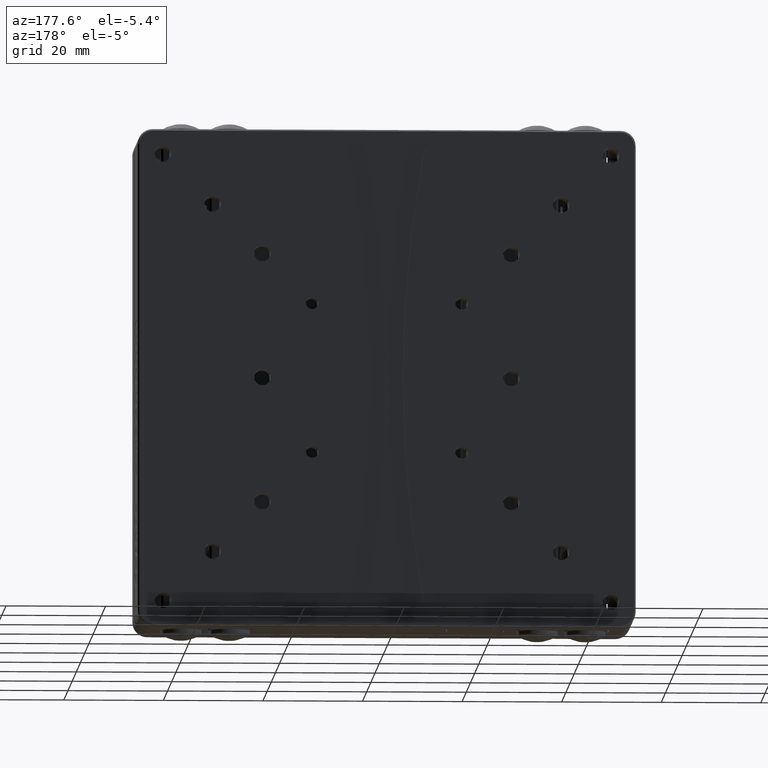
[diagram: clean part render]
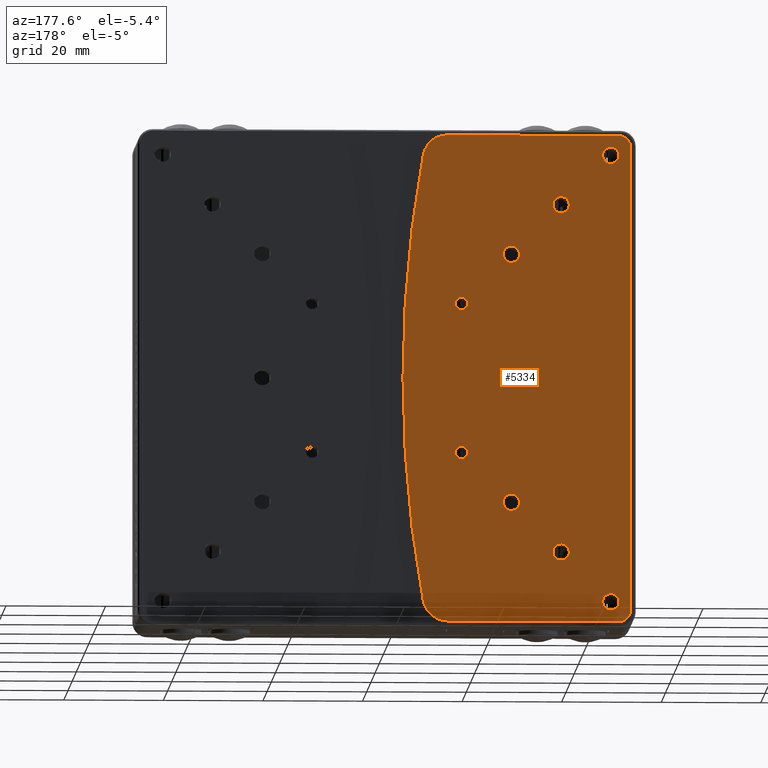
[diagram: same view with one face highlighted and labeled with its STEP entity id]
A machine part, auxiliary view. The second image highlights one B-rep face of the part: STEP entity #5334.
In plain terms, the highlighted planar face has unit normal (-0, 1, 0).
Its self-contained STEP definition (entity closure, byte-faithful):
#135 = CARTESIAN_POINT ( 'NONE',  ( -25.00000000000000000, 16.50000000000000000, 26.64999999999999900 ) ) ;
#322 = CARTESIAN_POINT ( 'NONE',  ( -12.23340306111999900, 16.50000000000000000, 49.00000000000000000 ) ) ;
#411 = CIRCLE ( 'NONE', #48054, 1.649999999999998600 ) ;
#851 = EDGE_CURVE ( 'NONE', #21226, #16068, #47699, .T. ) ;
#870 = VERTEX_POINT ( 'NONE', #13948 ) ;
#1006 = DIRECTION ( 'NONE',  ( 0.0000000000000000000, 1.000000000000000000, 0.0000000000000000000 ) ) ;
#1239 = CARTESIAN_POINT ( 'NONE',  ( -35.00000000000000000, 16.50000000000000000, -35.00000000000000000 ) ) ;
#1387 = EDGE_LOOP ( 'NONE', ( #20909, #45431 ) ) ;
#1508 = DIRECTION ( 'NONE',  ( -1.734723475976803200E-015, 0.0000000000000000000, -1.000000000000000000 ) ) ;
#1638 = EDGE_CURVE ( 'NONE', #14748, #54761, #25670, .T. ) ;
#2076 = ORIENTED_EDGE ( 'NONE', *, *, #9778, .T. ) ;
#2105 = CIRCLE ( 'NONE', #17062, 1.649999999999998600 ) ;
#2128 = DIRECTION ( 'NONE',  ( 0.0000000000000000000, -1.000000000000000000, -2.628368902995169900E-016 ) ) ;
#3119 = ORIENTED_EDGE ( 'NONE', *, *, #31594, .T. ) ;
#3191 = PLANE ( 'NONE',  #41843 ) ;
#3281 = EDGE_CURVE ( 'NONE', #12371, #25586, #3959, .T. ) ;
#3348 = CARTESIAN_POINT ( 'NONE',  ( -253.2499999999999700, 16.50000000000000000, -2.842170943039999700E-014 ) ) ;
#3902 = DIRECTION ( 'NONE',  ( 0.0000000000000000000, 0.0000000000000000000, 1.000000000000000000 ) ) ;
#3959 = CIRCLE ( 'NONE', #31106, 1.250000000000001100 ) ;
#4817 = CIRCLE ( 'NONE', #25986, 1.649999999999998600 ) ;
#4965 = DIRECTION ( 'NONE',  ( -0.0000000000000000000, -1.000000000000000000, -0.0000000000000000000 ) ) ;
#5254 = LINE ( 'NONE', #23402, #37904 ) ;
#5334 = ADVANCED_FACE ( 'NONE', ( #40435, #7762, #31759, #29114, #17758, #6437, #50406, #39092, #27794, #16413 ), #3191, .T. ) ;
#5394 = ORIENTED_EDGE ( 'NONE', *, *, #47120, .T. ) ;
#5521 = DIRECTION ( 'NONE',  ( 0.0000000000000000000, 0.0000000000000000000, 1.000000000000000000 ) ) ;
#5651 = CARTESIAN_POINT ( 'NONE',  ( -25.00000000000000000, 16.50000000000000000, -25.00000000000000000 ) ) ;
#5700 = VERTEX_POINT ( 'NONE', #44106 ) ;
#5793 = DIRECTION ( 'NONE',  ( 0.0000000000000000000, -1.000000000000000000, -2.628368902995164500E-016 ) ) ;
#6281 = ORIENTED_EDGE ( 'NONE', *, *, #7439, .T. ) ;
#6437 = FACE_BOUND ( 'NONE', #36489, .T. ) ;
#6951 = DIRECTION ( 'NONE',  ( -0.0000000000000000000, 1.000000000000000000, -0.0000000000000000000 ) ) ;
#7059 = DIRECTION ( 'NONE',  ( 0.0000000000000000000, 1.000000000000000000, 0.0000000000000000000 ) ) ;
#7285 = CARTESIAN_POINT ( 'NONE',  ( -50.96000000000000800, 16.50000000000000000, 50.96000000000000800 ) ) ;
#7359 = CARTESIAN_POINT ( 'NONE',  ( -12.23340306111999700, 16.50000000000000000, -49.00000000000000000 ) ) ;
#7439 = EDGE_CURVE ( 'NONE', #8179, #23715, #52301, .T. ) ;
#7470 = DIRECTION ( 'NONE',  ( -0.0000000000000000000, 1.000000000000000000, 0.0000000000000000000 ) ) ;
#7643 = DIRECTION ( 'NONE',  ( 0.0000000000000000000, 0.0000000000000000000, 1.000000000000000000 ) ) ;
#7762 = FACE_BOUND ( 'NONE', #42249, .T. ) ;
#7839 = AXIS2_PLACEMENT_3D ( 'NONE', #5651, #35447, #9931 ) ;
#8179 = VERTEX_POINT ( 'NONE', #30148 ) ;
#8202 = VERTEX_POINT ( 'NONE', #322 ) ;
#8490 = CIRCLE ( 'NONE', #25201, 1.649999999999998600 ) ;
#8670 = ORIENTED_EDGE ( 'NONE', *, *, #13080, .T. ) ;
#8980 = EDGE_CURVE ( 'NONE', #16068, #21226, #4817, .T. ) ;
#9404 = DIRECTION ( 'NONE',  ( -0.0000000000000000000, -1.000000000000000000, -0.0000000000000000000 ) ) ;
#9542 = CARTESIAN_POINT ( 'NONE',  ( -25.00000000000000000, 16.50000000000000000, -2.842170943039999700E-014 ) ) ;
#9695 = EDGE_CURVE ( 'NONE', #870, #36171, #2105, .T. ) ;
#9757 = AXIS2_PLACEMENT_3D ( 'NONE', #46003, #20527, #50303 ) ;
#9778 = EDGE_CURVE ( 'NONE', #16526, #5700, #52078, .T. ) ;
#9923 = CARTESIAN_POINT ( 'NONE',  ( -7.314697001140984900, 16.50000000000000400, 44.89795918367182300 ) ) ;
#9931 = DIRECTION ( 'NONE',  ( 0.0000000000000000000, 0.0000000000000000000, 1.000000000000000000 ) ) ;
#10811 = VERTEX_POINT ( 'NONE', #40580 ) ;
#10962 = AXIS2_PLACEMENT_3D ( 'NONE', #52570, #27082, #1508 ) ;
#11006 = DIRECTION ( 'NONE',  ( 0.0000000000000000000, 0.0000000000000000000, 1.000000000000000000 ) ) ;
#11128 = AXIS2_PLACEMENT_3D ( 'NONE', #32571, #7059, #36840 ) ;
#11297 = VECTOR ( 'NONE', #11006, 1000.000000000000000 ) ;
#11397 = DIRECTION ( 'NONE',  ( 0.0000000000000000000, -1.000000000000000000, -2.628368902995169900E-016 ) ) ;
#11681 = VERTEX_POINT ( 'NONE', #34679 ) ;
#12156 = DIRECTION ( 'NONE',  ( 0.0000000000000000000, -1.000000000000000000, -2.628368902995164500E-016 ) ) ;
#12371 = VERTEX_POINT ( 'NONE', #28030 ) ;
#12611 = CARTESIAN_POINT ( 'NONE',  ( -35.00000000000000000, 16.50000000000000000, -33.35000000000000100 ) ) ;
#12946 = CIRCLE ( 'NONE', #51128, 1.649999999999998600 ) ;
#13012 = ORIENTED_EDGE ( 'NONE', *, *, #3281, .F. ) ;
#13080 = EDGE_CURVE ( 'NONE', #29694, #34847, #34545, .T. ) ;
#13548 = ORIENTED_EDGE ( 'NONE', *, *, #8980, .T. ) ;
#13840 = DIRECTION ( 'NONE',  ( 0.0000000000000000000, 0.0000000000000000000, 1.000000000000000000 ) ) ;
#13948 = CARTESIAN_POINT ( 'NONE',  ( -35.00000000000000000, 16.50000000000000000, 33.35000000000000100 ) ) ;
#14748 = VERTEX_POINT ( 'NONE', #53021 ) ;
#15088 = ORIENTED_EDGE ( 'NONE', *, *, #42171, .T. ) ;
#15148 = ORIENTED_EDGE ( 'NONE', *, *, #851, .T. ) ;
#15357 = EDGE_LOOP ( 'NONE', ( #6281, #22800, #26647, #44672, #54393, #3119, #53431, #20190 ) ) ;
#15664 = VERTEX_POINT ( 'NONE', #21820 ) ;
#16068 = VERTEX_POINT ( 'NONE', #12611 ) ;
#16413 = FACE_OUTER_BOUND ( 'NONE', #15357, .T. ) ;
#16526 = VERTEX_POINT ( 'NONE', #51283 ) ;
#17060 = VERTEX_POINT ( 'NONE', #9923 ) ;
#17062 = AXIS2_PLACEMENT_3D ( 'NONE', #34914, #9404, #39223 ) ;
#17112 = AXIS2_PLACEMENT_3D ( 'NONE', #9542, #39357, #13840 ) ;
#17758 = FACE_BOUND ( 'NONE', #34930, .T. ) ;
#18485 = DIRECTION ( 'NONE',  ( -0.0000000000000000000, -1.000000000000000000, -0.0000000000000000000 ) ) ;
#19425 = CARTESIAN_POINT ( 'NONE',  ( -15.00000000000000000, 16.50000000000000400, -13.74999999999999800 ) ) ;
#19526 = EDGE_CURVE ( 'NONE', #15664, #55079, #33436, .T. ) ;
#20190 = ORIENTED_EDGE ( 'NONE', *, *, #27900, .T. ) ;
#20392 = ORIENTED_EDGE ( 'NONE', *, *, #42421, .T. ) ;
#20527 = DIRECTION ( 'NONE',  ( 3.469446951953611200E-016, 1.000000000000000000, 0.0000000000000000000 ) ) ;
#20664 = EDGE_CURVE ( 'NONE', #8202, #17060, #41988, .T. ) ;
#20666 = DIRECTION ( 'NONE',  ( 0.0000000000000000000, 1.000000000000000000, 0.0000000000000000000 ) ) ;
#20857 = VERTEX_POINT ( 'NONE', #25920 ) ;
#20909 = ORIENTED_EDGE ( 'NONE', *, *, #29733, .T. ) ;
#21156 = LINE ( 'NONE', #31026, #53820 ) ;
#21226 = VERTEX_POINT ( 'NONE', #24932 ) ;
#21580 = CARTESIAN_POINT ( 'NONE',  ( -25.00000000000000000, 16.50000000000000000, 25.00000000000000000 ) ) ;
#21820 = CARTESIAN_POINT ( 'NONE',  ( -15.00000000000000000, 16.50000000000000400, 13.74999999999999800 ) ) ;
#22071 = CARTESIAN_POINT ( 'NONE',  ( -46.49999999999999300, 16.50000000000000000, 46.49999999999999300 ) ) ;
#22105 = CARTESIAN_POINT ( 'NONE',  ( -15.00000000000000000, 16.50000000000000400, 15.00000000000000000 ) ) ;
#22339 = DIRECTION ( 'NONE',  ( -0.0000000000000000000, -1.000000000000000000, -0.0000000000000000000 ) ) ;
#22456 = EDGE_CURVE ( 'NONE', #36171, #870, #36509, .T. ) ;
#22659 = EDGE_LOOP ( 'NONE', ( #43848, #43804 ) ) ;
#22715 = AXIS2_PLACEMENT_3D ( 'NONE', #46155, #20666, #50459 ) ;
#22800 = ORIENTED_EDGE ( 'NONE', *, *, #45376, .T. ) ;
#23066 = CARTESIAN_POINT ( 'NONE',  ( -25.00000000000000000, 16.50000000000000000, 1.649999999999968600 ) ) ;
#23284 = EDGE_CURVE ( 'NONE', #42722, #20857, #37093, .T. ) ;
#23402 = CARTESIAN_POINT ( 'NONE',  ( 0.0000000000000000000, 16.50000000000000000, 49.00000000000000000 ) ) ;
#23435 = DIRECTION ( 'NONE',  ( -0.0000000000000000000, -1.000000000000000000, -0.0000000000000000000 ) ) ;
#23715 = VERTEX_POINT ( 'NONE', #47894 ) ;
#23915 = CARTESIAN_POINT ( 'NONE',  ( -25.00000000000000000, 16.50000000000000000, 23.35000000000000100 ) ) ;
#24863 = AXIS2_PLACEMENT_3D ( 'NONE', #36929, #11397, #41213 ) ;
#24918 = CIRCLE ( 'NONE', #10962, 5.000000000000011500 ) ;
#24932 = CARTESIAN_POINT ( 'NONE',  ( -35.00000000000000000, 16.50000000000000000, -36.64999999999999900 ) ) ;
#25201 = AXIS2_PLACEMENT_3D ( 'NONE', #31298, #5793, #35572 ) ;
#25239 = EDGE_LOOP ( 'NONE', ( #13548, #15148 ) ) ;
#25586 = VERTEX_POINT ( 'NONE', #19425 ) ;
#25670 = CIRCLE ( 'NONE', #7839, 1.649999999999998600 ) ;
#25897 = DIRECTION ( 'NONE',  ( 0.0000000000000000000, 0.0000000000000000000, 1.000000000000000000 ) ) ;
#25920 = CARTESIAN_POINT ( 'NONE',  ( -46.49999999999999300, 16.50000000000000000, 49.00000000000000000 ) ) ;
#25986 = AXIS2_PLACEMENT_3D ( 'NONE', #1239, #31075, #5521 ) ;
#26400 = DIRECTION ( 'NONE',  ( 0.0000000000000000000, 0.0000000000000000000, -1.000000000000000000 ) ) ;
#26444 = DIRECTION ( 'NONE',  ( 0.0000000000000000000, 0.0000000000000000000, 1.000000000000000000 ) ) ;
#26574 = CARTESIAN_POINT ( 'NONE',  ( -15.00000000000000000, 16.50000000000000400, -15.00000000000000000 ) ) ;
#26647 = ORIENTED_EDGE ( 'NONE', *, *, #23284, .T. ) ;
#26657 = EDGE_CURVE ( 'NONE', #20857, #8202, #5254, .T. ) ;
#27082 = DIRECTION ( 'NONE',  ( -0.0000000000000000000, 1.000000000000000000, -0.0000000000000000000 ) ) ;
#27224 = AXIS2_PLACEMENT_3D ( 'NONE', #54954, #29428, #3902 ) ;
#27685 = CARTESIAN_POINT ( 'NONE',  ( -45.00000000000000000, 16.50000000000000000, 45.00000000000000000 ) ) ;
#27763 = AXIS2_PLACEMENT_3D ( 'NONE', #22071, #51875, #26400 ) ;
#27794 = FACE_BOUND ( 'NONE', #52996, .T. ) ;
#27882 = CIRCLE ( 'NONE', #42683, 1.649999999999998600 ) ;
#27900 = EDGE_CURVE ( 'NONE', #53911, #8179, #21156, .T. ) ;
#28004 = CARTESIAN_POINT ( 'NONE',  ( -49.00000000000000000, 16.50000000000000000, 0.0000000000000000000 ) ) ;
#28030 = CARTESIAN_POINT ( 'NONE',  ( -15.00000000000000000, 16.50000000000000400, -16.25000000000000000 ) ) ;
#28071 = AXIS2_PLACEMENT_3D ( 'NONE', #43976, #18485, #48247 ) ;
#28415 = EDGE_LOOP ( 'NONE', ( #2076, #43965 ) ) ;
#29114 = FACE_BOUND ( 'NONE', #28415, .T. ) ;
#29428 = DIRECTION ( 'NONE',  ( -0.0000000000000000000, -1.000000000000000000, -0.0000000000000000000 ) ) ;
#29586 = AXIS2_PLACEMENT_3D ( 'NONE', #37692, #12156, #41967 ) ;
#29694 = VERTEX_POINT ( 'NONE', #23066 ) ;
#29733 = EDGE_CURVE ( 'NONE', #54761, #14748, #12946, .T. ) ;
#30148 = CARTESIAN_POINT ( 'NONE',  ( -46.49999999999998600, 16.50000000000000000, -49.00000000000000000 ) ) ;
#30517 = CARTESIAN_POINT ( 'NONE',  ( -25.00000000000000000, 16.50000000000000000, 25.00000000000000000 ) ) ;
#30690 = CARTESIAN_POINT ( 'NONE',  ( -25.00000000000000000, 16.50000000000000000, -23.35000000000000100 ) ) ;
#30832 = DIRECTION ( 'NONE',  ( 0.0000000000000000000, 0.0000000000000000000, 1.000000000000000000 ) ) ;
#31026 = CARTESIAN_POINT ( 'NONE',  ( 0.0000000000000000000, 16.50000000000000000, -49.00000000000000000 ) ) ;
#31075 = DIRECTION ( 'NONE',  ( -0.0000000000000000000, -1.000000000000000000, -0.0000000000000000000 ) ) ;
#31106 = AXIS2_PLACEMENT_3D ( 'NONE', #26574, #1006, #30832 ) ;
#31298 = CARTESIAN_POINT ( 'NONE',  ( -45.00000000000000000, 16.50000000000000000, -45.00000000000000000 ) ) ;
#31349 = EDGE_CURVE ( 'NONE', #11681, #53911, #24918, .T. ) ;
#31594 = EDGE_CURVE ( 'NONE', #17060, #11681, #35525, .T. ) ;
#31759 = FACE_BOUND ( 'NONE', #1387, .T. ) ;
#31921 = DIRECTION ( 'NONE',  ( 0.0000000000000000000, 0.0000000000000000000, 1.000000000000000000 ) ) ;
#32469 = CARTESIAN_POINT ( 'NONE',  ( -46.49999999999999300, 16.50000000000000000, -46.49999999999999300 ) ) ;
#32571 = CARTESIAN_POINT ( 'NONE',  ( -15.00000000000000000, 16.50000000000000400, 15.00000000000000000 ) ) ;
#33100 = AXIS2_PLACEMENT_3D ( 'NONE', #22105, #51908, #26444 ) ;
#33162 = DIRECTION ( 'NONE',  ( 0.0000000000000000000, 1.000000000000000000, 0.0000000000000000000 ) ) ;
#33436 = CIRCLE ( 'NONE', #11128, 1.250000000000001100 ) ;
#34545 = CIRCLE ( 'NONE', #27224, 1.649999999999997000 ) ;
#34679 = CARTESIAN_POINT ( 'NONE',  ( -7.314697001140984900, 16.50000000000000000, -44.89795918367181600 ) ) ;
#34717 = CIRCLE ( 'NONE', #33100, 1.250000000000001100 ) ;
#34770 = DIRECTION ( 'NONE',  ( 0.0000000000000000000, 0.0000000000000000000, 1.000000000000000000 ) ) ;
#34847 = VERTEX_POINT ( 'NONE', #39436 ) ;
#34914 = CARTESIAN_POINT ( 'NONE',  ( -35.00000000000000000, 16.50000000000000000, 35.00000000000000000 ) ) ;
#34930 = EDGE_LOOP ( 'NONE', ( #5394, #15088 ) ) ;
#35447 = DIRECTION ( 'NONE',  ( -0.0000000000000000000, -1.000000000000000000, -0.0000000000000000000 ) ) ;
#35525 = CIRCLE ( 'NONE', #53840, 249.9999999999999700 ) ;
#35572 = DIRECTION ( 'NONE',  ( 0.0000000000000000000, 0.0000000000000000000, 1.000000000000000000 ) ) ;
#35901 = CIRCLE ( 'NONE', #24863, 1.649999999999998600 ) ;
#36171 = VERTEX_POINT ( 'NONE', #46319 ) ;
#36489 = EDGE_LOOP ( 'NONE', ( #53183, #49435 ) ) ;
#36509 = CIRCLE ( 'NONE', #28071, 1.649999999999998600 ) ;
#36739 = DIRECTION ( 'NONE',  ( 0.0000000000000000000, 0.0000000000000000000, -1.000000000000000000 ) ) ;
#36840 = DIRECTION ( 'NONE',  ( 0.0000000000000000000, 0.0000000000000000000, 1.000000000000000000 ) ) ;
#36929 = CARTESIAN_POINT ( 'NONE',  ( -45.00000000000000000, 16.50000000000000000, 45.00000000000000000 ) ) ;
#36989 = ORIENTED_EDGE ( 'NONE', *, *, #40407, .F. ) ;
#37093 = CIRCLE ( 'NONE', #27763, 2.500000000000016000 ) ;
#37265 = DIRECTION ( 'NONE',  ( 1.000000000000000000, 0.0000000000000000000, 0.0000000000000000000 ) ) ;
#37692 = CARTESIAN_POINT ( 'NONE',  ( -45.00000000000000000, 16.50000000000000000, -45.00000000000000000 ) ) ;
#37904 = VECTOR ( 'NONE', #49068, 1000.000000000000000 ) ;
#39092 = FACE_BOUND ( 'NONE', #42400, .T. ) ;
#39223 = DIRECTION ( 'NONE',  ( 0.0000000000000000000, 0.0000000000000000000, 1.000000000000000000 ) ) ;
#39357 = DIRECTION ( 'NONE',  ( -0.0000000000000000000, -1.000000000000000000, -0.0000000000000000000 ) ) ;
#39436 = CARTESIAN_POINT ( 'NONE',  ( -25.00000000000000000, 16.50000000000000000, -1.650000000000025400 ) ) ;
#40407 = EDGE_CURVE ( 'NONE', #55079, #15664, #34717, .T. ) ;
#40435 = FACE_BOUND ( 'NONE', #22659, .T. ) ;
#40580 = CARTESIAN_POINT ( 'NONE',  ( -45.00000000000000000, 16.50000000000000000, -43.35000000000000100 ) ) ;
#41213 = DIRECTION ( 'NONE',  ( 0.0000000000000000000, 0.0000000000000000000, 1.000000000000000000 ) ) ;
#41843 = AXIS2_PLACEMENT_3D ( 'NONE', #7285, #7470, #37265 ) ;
#41967 = DIRECTION ( 'NONE',  ( 0.0000000000000000000, 0.0000000000000000000, 1.000000000000000000 ) ) ;
#41988 = CIRCLE ( 'NONE', #9757, 5.000000000000004400 ) ;
#42171 = EDGE_CURVE ( 'NONE', #54253, #10811, #54293, .T. ) ;
#42249 = EDGE_LOOP ( 'NONE', ( #8670, #20392 ) ) ;
#42400 = EDGE_LOOP ( 'NONE', ( #46427, #13012 ) ) ;
#42421 = EDGE_CURVE ( 'NONE', #34847, #29694, #46245, .T. ) ;
#42683 = AXIS2_PLACEMENT_3D ( 'NONE', #21580, #51375, #25897 ) ;
#42722 = VERTEX_POINT ( 'NONE', #49760 ) ;
#43200 = CARTESIAN_POINT ( 'NONE',  ( -45.00000000000000000, 16.50000000000000000, -46.64999999999999900 ) ) ;
#43804 = ORIENTED_EDGE ( 'NONE', *, *, #49660, .T. ) ;
#43848 = ORIENTED_EDGE ( 'NONE', *, *, #48788, .T. ) ;
#43965 = ORIENTED_EDGE ( 'NONE', *, *, #48117, .T. ) ;
#43976 = CARTESIAN_POINT ( 'NONE',  ( -35.00000000000000000, 16.50000000000000000, 35.00000000000000000 ) ) ;
#44106 = CARTESIAN_POINT ( 'NONE',  ( -45.00000000000000000, 16.50000000000000000, 43.35000000000000100 ) ) ;
#44672 = ORIENTED_EDGE ( 'NONE', *, *, #26657, .T. ) ;
#45308 = LINE ( 'NONE', #28004, #11297 ) ;
#45376 = EDGE_CURVE ( 'NONE', #23715, #42722, #45308, .T. ) ;
#45431 = ORIENTED_EDGE ( 'NONE', *, *, #1638, .T. ) ;
#45602 = AXIS2_PLACEMENT_3D ( 'NONE', #27685, #2128, #31921 ) ;
#46003 = CARTESIAN_POINT ( 'NONE',  ( -12.23340306111999900, 16.50000000000000400, 44.00000000000000000 ) ) ;
#46155 = CARTESIAN_POINT ( 'NONE',  ( -15.00000000000000000, 16.50000000000000400, -15.00000000000000000 ) ) ;
#46245 = CIRCLE ( 'NONE', #17112, 1.649999999999997000 ) ;
#46319 = CARTESIAN_POINT ( 'NONE',  ( -35.00000000000000000, 16.50000000000000000, 36.64999999999999900 ) ) ;
#46427 = ORIENTED_EDGE ( 'NONE', *, *, #48716, .F. ) ;
#47120 = EDGE_CURVE ( 'NONE', #10811, #54253, #8490, .T. ) ;
#47699 = CIRCLE ( 'NONE', #48107, 1.649999999999998600 ) ;
#47830 = CARTESIAN_POINT ( 'NONE',  ( -35.00000000000000000, 16.50000000000000000, -35.00000000000000000 ) ) ;
#47894 = CARTESIAN_POINT ( 'NONE',  ( -49.00000000000000000, 16.50000000000000000, -46.49999999999999300 ) ) ;
#48054 = AXIS2_PLACEMENT_3D ( 'NONE', #30517, #4965, #34770 ) ;
#48107 = AXIS2_PLACEMENT_3D ( 'NONE', #47830, #22339, #52128 ) ;
#48117 = EDGE_CURVE ( 'NONE', #5700, #16526, #35901, .T. ) ;
#48247 = DIRECTION ( 'NONE',  ( 0.0000000000000000000, 0.0000000000000000000, 1.000000000000000000 ) ) ;
#48716 = EDGE_CURVE ( 'NONE', #25586, #12371, #54525, .T. ) ;
#48788 = EDGE_CURVE ( 'NONE', #49588, #51693, #27882, .T. ) ;
#48828 = ORIENTED_EDGE ( 'NONE', *, *, #19526, .F. ) ;
#48905 = CARTESIAN_POINT ( 'NONE',  ( -25.00000000000000000, 16.50000000000000000, -25.00000000000000000 ) ) ;
#49068 = DIRECTION ( 'NONE',  ( 1.000000000000000000, 0.0000000000000000000, 0.0000000000000000000 ) ) ;
#49435 = ORIENTED_EDGE ( 'NONE', *, *, #9695, .T. ) ;
#49438 = AXIS2_PLACEMENT_3D ( 'NONE', #32469, #6951, #36739 ) ;
#49588 = VERTEX_POINT ( 'NONE', #135 ) ;
#49660 = EDGE_CURVE ( 'NONE', #51693, #49588, #411, .T. ) ;
#49760 = CARTESIAN_POINT ( 'NONE',  ( -49.00000000000000000, 16.50000000000000000, 46.49999999999998600 ) ) ;
#50303 = DIRECTION ( 'NONE',  ( -1.000000000000000000, 6.938893903907222500E-016, 0.0000000000000000000 ) ) ;
#50406 = FACE_BOUND ( 'NONE', #25239, .T. ) ;
#50459 = DIRECTION ( 'NONE',  ( 0.0000000000000000000, 0.0000000000000000000, 1.000000000000000000 ) ) ;
#51128 = AXIS2_PLACEMENT_3D ( 'NONE', #48905, #23435, #53243 ) ;
#51283 = CARTESIAN_POINT ( 'NONE',  ( -45.00000000000000000, 16.50000000000000000, 46.64999999999999900 ) ) ;
#51375 = DIRECTION ( 'NONE',  ( -0.0000000000000000000, -1.000000000000000000, -0.0000000000000000000 ) ) ;
#51693 = VERTEX_POINT ( 'NONE', #23915 ) ;
#51875 = DIRECTION ( 'NONE',  ( -0.0000000000000000000, 1.000000000000000000, 0.0000000000000000000 ) ) ;
#51908 = DIRECTION ( 'NONE',  ( 0.0000000000000000000, 1.000000000000000000, 0.0000000000000000000 ) ) ;
#52078 = CIRCLE ( 'NONE', #45602, 1.649999999999998600 ) ;
#52128 = DIRECTION ( 'NONE',  ( 0.0000000000000000000, 0.0000000000000000000, 1.000000000000000000 ) ) ;
#52245 = DIRECTION ( 'NONE',  ( -1.000000000000000000, 0.0000000000000000000, 0.0000000000000000000 ) ) ;
#52301 = CIRCLE ( 'NONE', #49438, 2.500000000000016000 ) ;
#52570 = CARTESIAN_POINT ( 'NONE',  ( -12.23340306111999900, 16.50000000000000000, -44.00000000000000000 ) ) ;
#52996 = EDGE_LOOP ( 'NONE', ( #36989, #48828 ) ) ;
#53021 = CARTESIAN_POINT ( 'NONE',  ( -25.00000000000000000, 16.50000000000000000, -26.64999999999999900 ) ) ;
#53183 = ORIENTED_EDGE ( 'NONE', *, *, #22456, .T. ) ;
#53243 = DIRECTION ( 'NONE',  ( 0.0000000000000000000, 0.0000000000000000000, 1.000000000000000000 ) ) ;
#53431 = ORIENTED_EDGE ( 'NONE', *, *, #31349, .T. ) ;
#53820 = VECTOR ( 'NONE', #52245, 1000.000000000000000 ) ;
#53840 = AXIS2_PLACEMENT_3D ( 'NONE', #3348, #33162, #7643 ) ;
#53911 = VERTEX_POINT ( 'NONE', #7359 ) ;
#54253 = VERTEX_POINT ( 'NONE', #43200 ) ;
#54293 = CIRCLE ( 'NONE', #29586, 1.649999999999998600 ) ;
#54393 = ORIENTED_EDGE ( 'NONE', *, *, #20664, .T. ) ;
#54525 = CIRCLE ( 'NONE', #22715, 1.250000000000001100 ) ;
#54761 = VERTEX_POINT ( 'NONE', #30690 ) ;
#54858 = CARTESIAN_POINT ( 'NONE',  ( -15.00000000000000000, 16.50000000000000400, 16.25000000000000000 ) ) ;
#54954 = CARTESIAN_POINT ( 'NONE',  ( -25.00000000000000000, 16.50000000000000000, -2.842170943039999700E-014 ) ) ;
#55079 = VERTEX_POINT ( 'NONE', #54858 ) ;